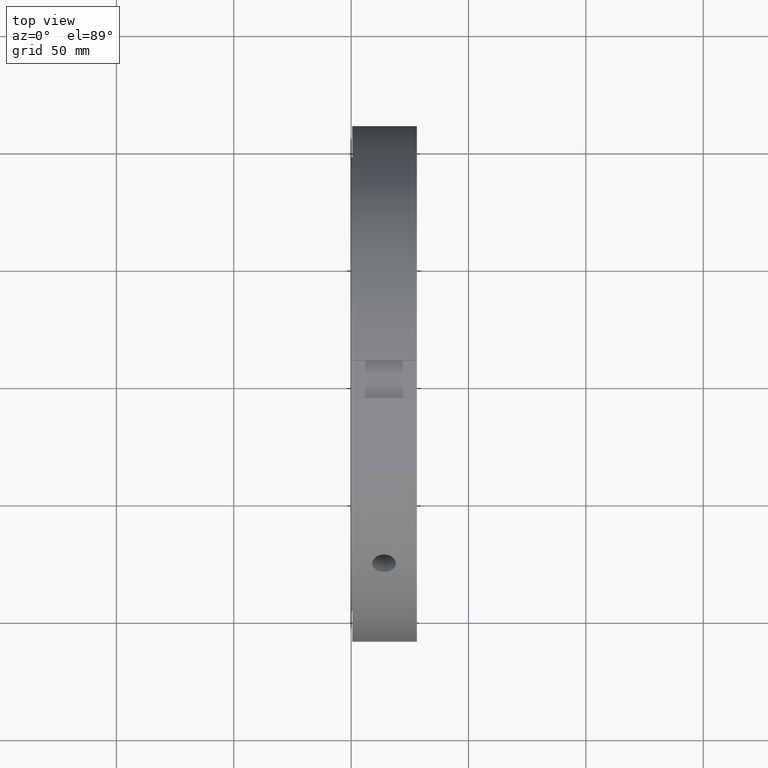
[diagram: clean part render]
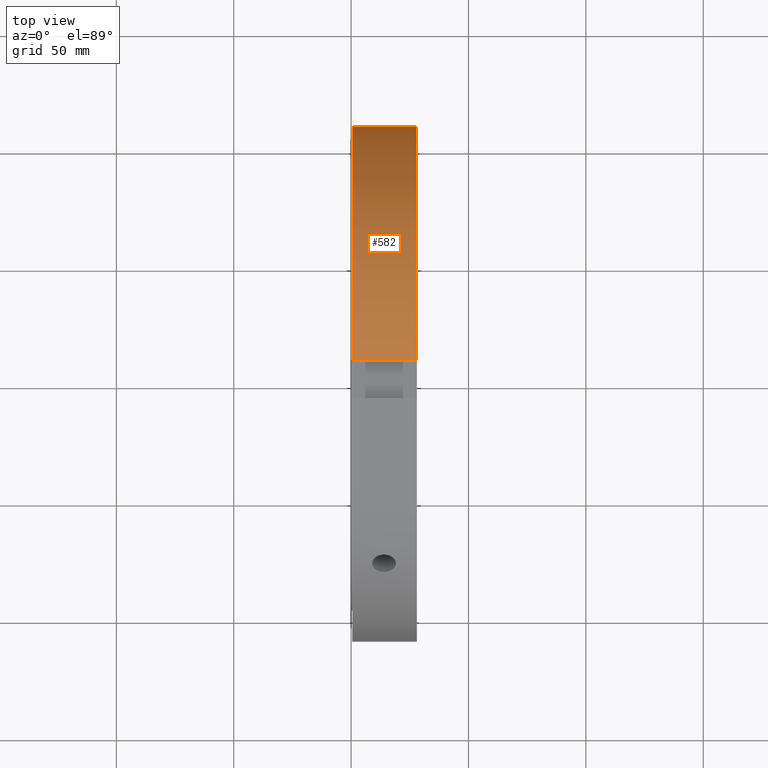
[diagram: same view with one face highlighted and labeled with its STEP entity id]
A machine part, top view. The second image highlights one B-rep face of the part: STEP entity #582.
In plain terms, the highlighted cylindrical surface (partial cylindrical patch) has radius 110 mm, axis along (1, 0, 0).
Its self-contained STEP definition (entity closure, byte-faithful):
#455=CARTESIAN_POINT('',(0.499999999999967,7.999999999999999,109.708705215219820));
#456=VERTEX_POINT('',#455);
#471=CARTESIAN_POINT('',(27.999999999999979,8.0,109.708705215219820));
#472=VERTEX_POINT('',#471);
#479=CARTESIAN_POINT('',(0.499999999999968,8.000000000000002,109.708705215219820));
#480=DIRECTION('',(1.0,0.0,0.0));
#481=VECTOR('',#480,27.500000000000011);
#482=LINE('',#479,#481);
#483=EDGE_CURVE('',#456,#472,#482,.T.);
#550=CARTESIAN_POINT('',(14.249999999999973,0.0,0.0));
#551=DIRECTION('',(1.0,0.0,0.0));
#552=DIRECTION('',(0.0,1.0,0.0));
#553=AXIS2_PLACEMENT_3D('',#550,#551,#552);
#554=CYLINDRICAL_SURFACE('',#553,110.0);
#555=ORIENTED_EDGE('',*,*,#483,.T.);
#556=CARTESIAN_POINT('',(27.999999999999979,109.708705215219820,7.999999999999993));
#557=VERTEX_POINT('',#556);
#558=CARTESIAN_POINT('',(27.999999999999979,0.0,0.0));
#559=DIRECTION('',(1.0,0.0,0.0));
#560=DIRECTION('',(0.0,1.0,0.0));
#561=AXIS2_PLACEMENT_3D('',#558,#559,#560);
#562=CIRCLE('',#561,110.0);
#563=EDGE_CURVE('',#557,#472,#562,.T.);
#564=ORIENTED_EDGE('',*,*,#563,.F.);
#565=CARTESIAN_POINT('',(0.499999999999967,109.708705215219820,7.999999999999994));
#566=VERTEX_POINT('',#565);
#567=CARTESIAN_POINT('',(27.999999999999979,109.708705215219820,7.999999999999994));
#568=DIRECTION('',(-1.0,0.0,0.0));
#569=VECTOR('',#568,27.500000000000011);
#570=LINE('',#567,#569);
#571=EDGE_CURVE('',#557,#566,#570,.T.);
#572=ORIENTED_EDGE('',*,*,#571,.T.);
#573=CARTESIAN_POINT('',(0.499999999999967,0.0,0.0));
#574=DIRECTION('',(1.0,0.0,0.0));
#575=DIRECTION('',(0.0,1.0,0.0));
#576=AXIS2_PLACEMENT_3D('',#573,#574,#575);
#577=CIRCLE('',#576,110.0);
#578=EDGE_CURVE('',#566,#456,#577,.T.);
#579=ORIENTED_EDGE('',*,*,#578,.T.);
#580=EDGE_LOOP('',(#555,#564,#572,#579));
#581=FACE_OUTER_BOUND('',#580,.T.);
#582=ADVANCED_FACE('',(#581),#554,.T.);